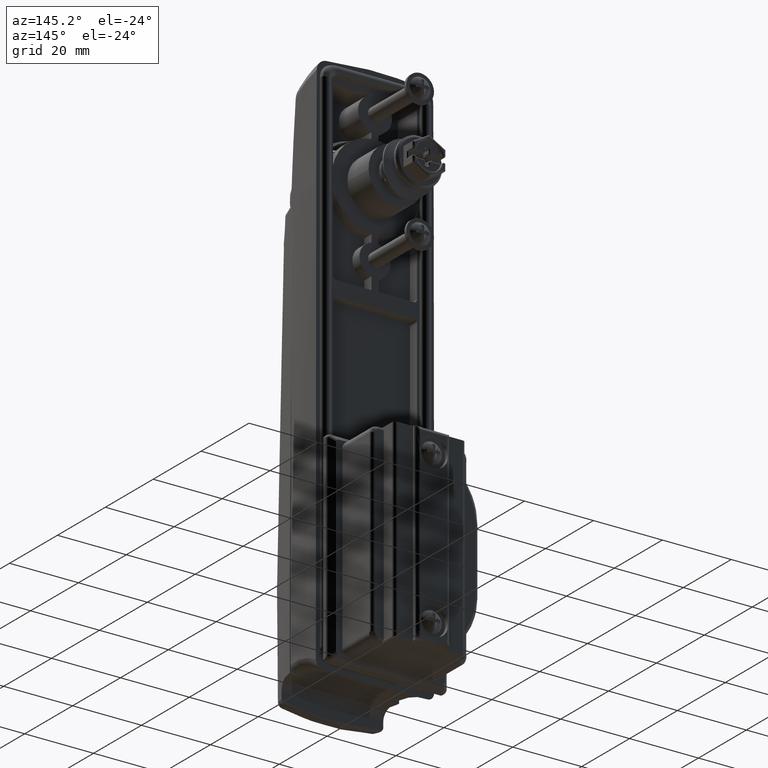
[diagram: clean part render]
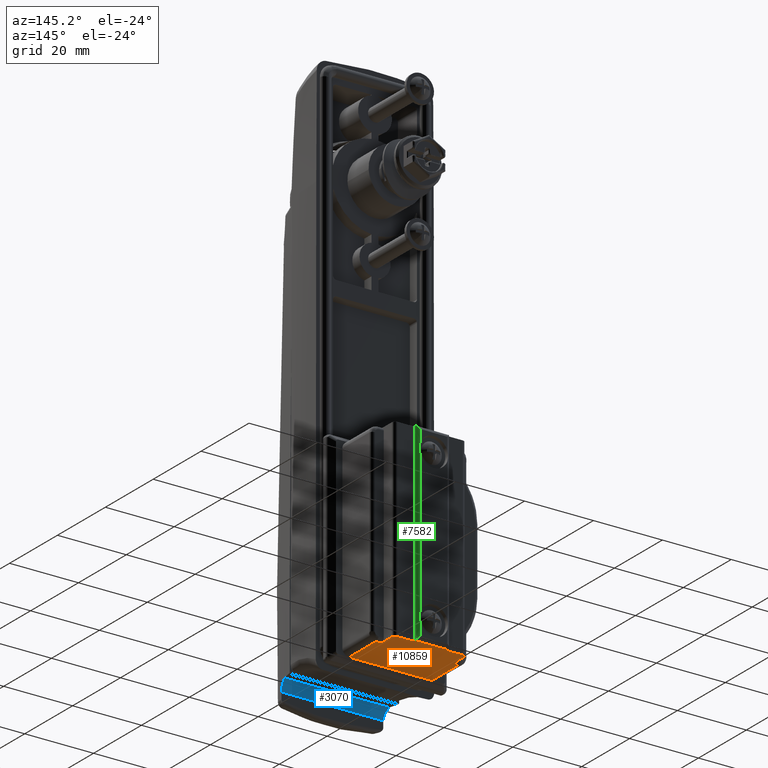
[diagram: same view with three faces highlighted in distinct colors, each labeled with its STEP entity id]
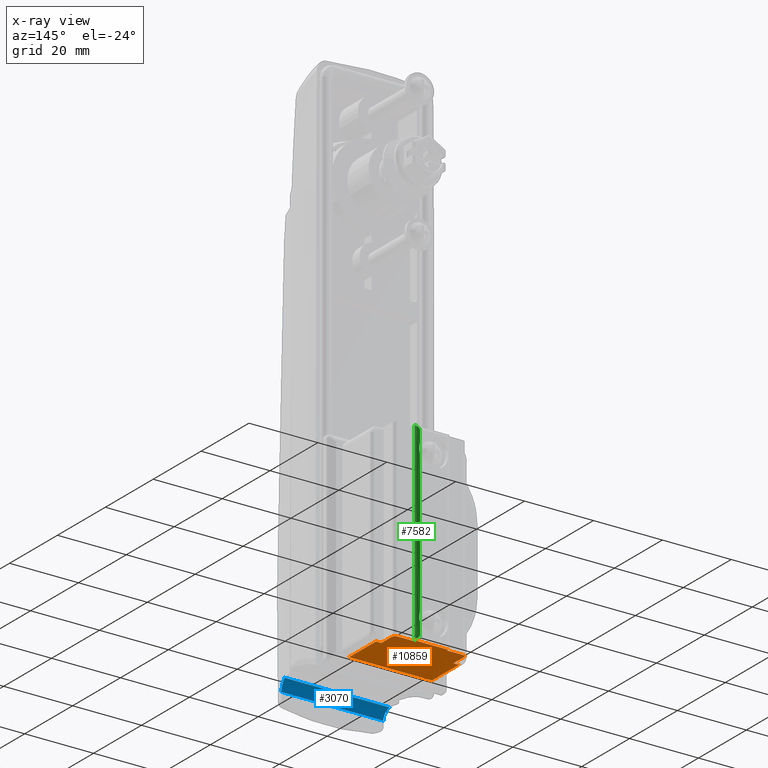
[diagram: x-ray of the same camera — body ghosted, the three highlighted faces saturated]
A machine part, auxiliary view with three faces highlighted in distinct colors.
The next image is the same camera in x-ray (body ghosted, the three faces saturated) — at least one of them is partly hidden behind the body in this view.
Their STEP definitions:

[orange] entity #10859 — the highlighted face is a freeform B-spline surface patch.
#6814=CARTESIAN_POINT('',(16.200000816956251,12.000000664551759,-127.950006077298990));
#6815=VERTEX_POINT('',#6814);
#6838=CARTESIAN_POINT('',(16.200000816956251,10.450000448252160,-127.950006077298990));
#6839=VERTEX_POINT('',#6838);
#6853=CARTESIAN_POINT('',(16.200000816956251,12.000000664551759,-127.950006077298990));
#6854=CARTESIAN_POINT('',(16.200000816956251,10.450000448252160,-127.950006077298990));
#6855=QUASI_UNIFORM_CURVE('',1,(#6853,#6854),.UNSPECIFIED.,.F.,.U.);
#6856=EDGE_CURVE('',#6815,#6839,#6855,.T.);
#7405=CARTESIAN_POINT('',(21.500001105342950,9.450000513242340,-127.950006077298990));
#7406=VERTEX_POINT('',#7405);
#7412=CARTESIAN_POINT('',(20.500001085880200,10.450000531941820,-127.950006077298990));
#7413=VERTEX_POINT('',#7412);
#7414=CARTESIAN_POINT('',(20.500001085880200,10.450000531941820,-127.950006077298990));
#7415=CARTESIAN_POINT('',(20.680099348541571,10.450487665385770,-127.950006077298990));
#7416=CARTESIAN_POINT('',(20.990428853136240,10.363726375734480,-127.950006077299190));
#7417=CARTESIAN_POINT('',(21.311771072047708,10.072403722679320,-127.950006077298700));
#7418=CARTESIAN_POINT('',(21.468455022653458,9.760879629911862,-127.950006077299310));
#7419=CARTESIAN_POINT('',(21.500038616857509,9.548173236830746,-127.950006077298500));
#7420=CARTESIAN_POINT('',(21.500001105342950,9.450000513242340,-127.950006077298990));
#7421=B_SPLINE_CURVE_WITH_KNOTS('',3,(#7414,#7415,#7416,#7417,#7418,#7419,#7420),.UNSPECIFIED.,.F.,.U.,(4,1,1,1,4),(0.000000306187018,0.540037809345196,0.932731003919516,1.276416909964118,1.570953921481525),.UNSPECIFIED.);
#7422=EDGE_CURVE('',#7413,#7406,#7421,.T.);
#7454=CARTESIAN_POINT('',(22.000001092441401,4.950000151288360,-127.950006077298990));
#7455=VERTEX_POINT('',#7454);
#7539=CARTESIAN_POINT('',(22.000001092441401,-4.949999964272389,-127.950006077298990));
#7540=VERTEX_POINT('',#7539);
#7611=CARTESIAN_POINT('',(20.500001174712949,-10.450000357676940,-127.950006077298990));
#7612=VERTEX_POINT('',#7611);
#7618=CARTESIAN_POINT('',(21.500001185674950,-9.450000330476710,-127.950006077298990));
#7619=VERTEX_POINT('',#7618);
#7620=CARTESIAN_POINT('',(21.500001185674950,-9.450000330476710,-127.950006077298990));
#7621=CARTESIAN_POINT('',(21.500231804751131,-9.597306045103535,-127.950006077298890));
#7622=CARTESIAN_POINT('',(21.437411477629560,-9.875266712567573,-127.950006077299310));
#7623=CARTESIAN_POINT('',(21.208933278241449,-10.183428951589351,-127.950006077298600));
#7624=CARTESIAN_POINT('',(20.892520339904920,-10.394728206857250,-127.950006077300100));
#7625=CARTESIAN_POINT('',(20.647313483237610,-10.450243302706960,-127.950006077298500));
#7626=CARTESIAN_POINT('',(20.500001174712949,-10.450000357676940,-127.950006077298990));
#7627=B_SPLINE_CURVE_WITH_KNOTS('',3,(#7620,#7621,#7622,#7623,#7624,#7625,#7626),.UNSPECIFIED.,.F.,.U.,(4,1,1,1,4),(0.000000306186575,0.441840033258406,0.834559410708294,1.129114194409764,1.570953921481519),.UNSPECIFIED.);
#7628=EDGE_CURVE('',#7619,#7612,#7627,.T.);
#7654=CARTESIAN_POINT('',(16.200000905788801,-10.450000310540339,-127.950006077298990));
#7655=VERTEX_POINT('',#7654);
#7676=CARTESIAN_POINT('',(16.200000918964950,-12.000000526839941,-127.950006077298990));
#7677=VERTEX_POINT('',#7676);
#7691=CARTESIAN_POINT('',(16.200000905788801,-10.450000310540339,-127.950006077298990));
#7692=CARTESIAN_POINT('',(16.200000918964950,-12.000000526839941,-127.950006077298990));
#7693=QUASI_UNIFORM_CURVE('',1,(#7691,#7692),.UNSPECIFIED.,.F.,.U.);
#7694=EDGE_CURVE('',#7655,#7677,#7693,.T.);
#10617=CARTESIAN_POINT('',(22.000001092441401,4.950000151288360,-127.950006077298990));
#10618=CARTESIAN_POINT('',(22.000001092441401,-4.949999964272389,-127.950006077298990));
#10619=QUASI_UNIFORM_CURVE('',1,(#10617,#10618),.UNSPECIFIED.,.F.,.U.);
#10620=EDGE_CURVE('',#7455,#7540,#10619,.T.);
#10685=CARTESIAN_POINT('',(5.000000237486710,-12.000000622048100,-127.950006077299800));
#10686=VERTEX_POINT('',#10685);
#10687=CARTESIAN_POINT('',(16.200000918964950,-12.000000526839941,-127.950006077298990));
#10688=CARTESIAN_POINT('',(5.000000237486710,-12.000000622048100,-127.950006077299800));
#10689=QUASI_UNIFORM_CURVE('',1,(#10687,#10688),.UNSPECIFIED.,.F.,.U.);
#10690=EDGE_CURVE('',#7677,#10686,#10689,.T.);
#10738=CARTESIAN_POINT('',(5.000000237486600,12.000000664551759,-127.950006077298990));
#10739=VERTEX_POINT('',#10738);
#10740=CARTESIAN_POINT('',(5.000000237486600,12.000000664551759,-127.950006077298990));
#10741=CARTESIAN_POINT('',(16.200000816956251,12.000000664551759,-127.950006077298990));
#10742=QUASI_UNIFORM_CURVE('',1,(#10740,#10741),.UNSPECIFIED.,.F.,.U.);
#10743=EDGE_CURVE('',#10739,#6815,#10742,.T.);
#10806=CARTESIAN_POINT('',(4.150850227730910,-13.198800639797099,-127.950006077298990));
#10807=CARTESIAN_POINT('',(22.849151558172650,-13.198800639797099,-127.950006077298990));
#10808=CARTESIAN_POINT('',(4.150850227730910,13.198801326030960,-127.950006077298990));
#10809=CARTESIAN_POINT('',(22.849151558172650,13.198801326030960,-127.950006077298990));
#10810=B_SPLINE_SURFACE_WITH_KNOTS('',1,1,((#10806,#10808),(#10807,#10809)),.UNSPECIFIED.,.F.,.F.,.U.,(2,2),(2,2),(0.0,18.698301330441740),(0.0,26.397601965828070),.UNSPECIFIED.);
#10811=CARTESIAN_POINT('',(20.500001174712949,-10.450000357676940,-127.950006077298990));
#10812=CARTESIAN_POINT('',(16.200000905788801,-10.450000310540339,-127.950006077298990));
#10813=QUASI_UNIFORM_CURVE('',1,(#10811,#10812),.UNSPECIFIED.,.F.,.U.);
#10814=EDGE_CURVE('',#7612,#7655,#10813,.T.);
#10815=ORIENTED_EDGE('',*,*,#10814,.T.);
#10816=ORIENTED_EDGE('',*,*,#7694,.T.);
#10817=ORIENTED_EDGE('',*,*,#10690,.T.);
#10818=CARTESIAN_POINT('',(5.000000237486710,-12.000000622048100,-127.950006077299800));
#10819=CARTESIAN_POINT('',(5.000000237486600,12.000000664551759,-127.950006077298990));
#10820=QUASI_UNIFORM_CURVE('',1,(#10818,#10819),.UNSPECIFIED.,.F.,.U.);
#10821=EDGE_CURVE('',#10686,#10739,#10820,.T.);
#10822=ORIENTED_EDGE('',*,*,#10821,.T.);
#10823=ORIENTED_EDGE('',*,*,#10743,.T.);
#10824=ORIENTED_EDGE('',*,*,#6856,.T.);
#10825=CARTESIAN_POINT('',(16.200000816956251,10.450000448252160,-127.950006077298990));
#10826=CARTESIAN_POINT('',(20.500001085880200,10.450000531941820,-127.950006077298990));
#10827=QUASI_UNIFORM_CURVE('',1,(#10825,#10826),.UNSPECIFIED.,.F.,.U.);
#10828=EDGE_CURVE('',#6839,#7413,#10827,.T.);
#10829=ORIENTED_EDGE('',*,*,#10828,.T.);
#10830=ORIENTED_EDGE('',*,*,#7422,.T.);
#10831=CARTESIAN_POINT('',(21.500001021195249,4.950000151288360,-127.950006077298990));
#10832=VERTEX_POINT('',#10831);
#10833=CARTESIAN_POINT('',(21.500001105342950,9.450000513242340,-127.950006077298990));
#10834=CARTESIAN_POINT('',(21.500001021195249,4.950000151288360,-127.950006077298990));
#10835=QUASI_UNIFORM_CURVE('',1,(#10833,#10834),.UNSPECIFIED.,.F.,.U.);
#10836=EDGE_CURVE('',#7406,#10832,#10835,.T.);
#10837=ORIENTED_EDGE('',*,*,#10836,.T.);
#10838=CARTESIAN_POINT('',(21.500001021195249,4.950000151288360,-127.950006077298990));
#10839=CARTESIAN_POINT('',(22.000001092441401,4.950000151288360,-127.950006077298990));
#10840=QUASI_UNIFORM_CURVE('',1,(#10838,#10839),.UNSPECIFIED.,.F.,.U.);
#10841=EDGE_CURVE('',#10832,#7455,#10840,.T.);
#10842=ORIENTED_EDGE('',*,*,#10841,.T.);
#10843=ORIENTED_EDGE('',*,*,#10620,.T.);
#10844=CARTESIAN_POINT('',(21.500001063273899,-4.949999968522760,-127.950006077298990));
#10845=VERTEX_POINT('',#10844);
#10846=CARTESIAN_POINT('',(22.000001092441401,-4.949999964272389,-127.950006077298990));
#10847=CARTESIAN_POINT('',(21.500001063273899,-4.949999968522760,-127.950006077298990));
#10848=QUASI_UNIFORM_CURVE('',1,(#10846,#10847),.UNSPECIFIED.,.F.,.U.);
#10849=EDGE_CURVE('',#7540,#10845,#10848,.T.);
#10850=ORIENTED_EDGE('',*,*,#10849,.T.);
#10851=CARTESIAN_POINT('',(21.500001063273899,-4.949999968522760,-127.950006077298990));
#10852=CARTESIAN_POINT('',(21.500001185674950,-9.450000330476710,-127.950006077298990));
#10853=QUASI_UNIFORM_CURVE('',1,(#10851,#10852),.UNSPECIFIED.,.F.,.U.);
#10854=EDGE_CURVE('',#10845,#7619,#10853,.T.);
#10855=ORIENTED_EDGE('',*,*,#10854,.T.);
#10856=ORIENTED_EDGE('',*,*,#7628,.T.);
#10857=EDGE_LOOP('',(#10815,#10816,#10817,#10822,#10823,#10824,#10829,#10830,#10837,#10842,#10843,#10850,#10855,#10856));
#10858=FACE_OUTER_BOUND('',#10857,.T.);
#10859=ADVANCED_FACE('',(#10858),#10810,.F.);

[blue] entity #3070 — the highlighted face is a freeform B-spline surface patch.
#2984=CARTESIAN_POINT('',(-17.804769563052599,15.988803823540801,-128.948902455924010));
#2985=CARTESIAN_POINT('',(-17.804769563052599,-16.007838113806919,-128.948902455924010));
#2986=CARTESIAN_POINT('',(-17.715221121748517,15.988803823540803,-126.752254188317170));
#2987=CARTESIAN_POINT('',(-17.715221121748517,-16.007838113806915,-126.752254188317170));
#2988=CARTESIAN_POINT('',(-15.672060442429011,15.988803823540801,-125.940603417724700));
#2989=CARTESIAN_POINT('',(-15.672060442429011,-16.007838113806919,-125.940603417724700));
#2997=(BOUNDED_SURFACE()B_SPLINE_SURFACE(1,2,((#2984,#2986,#2988),(#2985,#2987,#2989)),.UNSPECIFIED.,.F.,.F.,.U.)B_SPLINE_SURFACE_WITH_KNOTS((2,2),(3,3),(0.0,31.996641937347722),(0.0,4.011146839539353),.UNSPECIFIED.)GEOMETRIC_REPRESENTATION_ITEM()RATIONAL_B_SPLINE_SURFACE(((1.0,0.838670567945424,1.0),(1.0,0.838670567945424,1.0)))REPRESENTATION_ITEM('')SURFACE());
#2998=CARTESIAN_POINT('',(-17.800000845454750,14.780695585069420,-128.860405088878390));
#2999=VERTEX_POINT('',#2998);
#3000=CARTESIAN_POINT('',(-17.800000845454750,-14.780695585074000,-128.860405088878390));
#3001=VERTEX_POINT('',#3000);
#3002=CARTESIAN_POINT('',(-17.800000845454750,14.780695585069420,-128.860405088878390));
#3003=CARTESIAN_POINT('',(-17.800000845454750,-14.780695585074000,-128.860405088878390));
#3004=QUASI_UNIFORM_CURVE('',1,(#3002,#3003),.UNSPECIFIED.,.F.,.U.);
#3005=EDGE_CURVE('',#2999,#3001,#3004,.T.);
#3006=ORIENTED_EDGE('',*,*,#3005,.F.);
#3007=CARTESIAN_POINT('',(-15.812312938845750,15.227432212896000,-126.000005984679010));
#3008=VERTEX_POINT('',#3007);
#3009=CARTESIAN_POINT('',(-15.812312938845750,15.227432212896000,-126.000005984679010));
#3010=CARTESIAN_POINT('',(-15.951051328760650,15.196988867834341,-126.062484556200200));
#3011=CARTESIAN_POINT('',(-16.084192570256679,15.167651289508511,-126.133640787136300));
#3012=CARTESIAN_POINT('',(-16.339654024365998,15.111155583526010,-126.292743569808910));
#3013=CARTESIAN_POINT('',(-16.461973628843818,15.083997546858109,-126.380691054790400));
#3014=CARTESIAN_POINT('',(-16.637171849843892,15.044965601832430,-126.525473926392810));
#3015=CARTESIAN_POINT('',(-16.694186548299239,15.032240100425859,-126.575885507840500));
#3016=CARTESIAN_POINT('',(-16.805359927102121,15.007383798047361,-126.681146583936100));
#3017=CARTESIAN_POINT('',(-16.859009934347810,14.995366706029170,-126.735523503738510));
#3018=CARTESIAN_POINT('',(-17.013676970924472,14.960665335496650,-126.903192261176300));
#3019=CARTESIAN_POINT('',(-17.108706084831180,14.939265466121981,-127.021254195839700));
#3020=CARTESIAN_POINT('',(-17.282713868942508,14.899955024151881,-127.269862464158510));
#3021=CARTESIAN_POINT('',(-17.361695591977188,14.882043718561350,-127.400406411664310));
#3022=CARTESIAN_POINT('',(-17.467541510500642,14.857948907610639,-127.606048181414490));
#3023=CARTESIAN_POINT('',(-17.500459206984139,14.850438267320159,-127.675778424816900));
#3024=CARTESIAN_POINT('',(-17.561157545697839,14.836555979853591,-127.816520849019800));
#3025=CARTESIAN_POINT('',(-17.589022228305641,14.830165200877840,-127.887694842670500));
#3026=CARTESIAN_POINT('',(-17.665254516583449,14.812627052459680,-128.103595780200290));
#3027=CARTESIAN_POINT('',(-17.706294268552330,14.803106747864311,-128.250690752579490));
#3028=CARTESIAN_POINT('',(-17.768482114034182,14.788490259811191,-128.551309301456800));
#3029=CARTESIAN_POINT('',(-17.789619386945589,14.783394765463150,-128.705512074249410));
#3030=CARTESIAN_POINT('',(-17.800000845454750,14.780695585064841,-128.860405088878200));
#3031=B_SPLINE_CURVE_WITH_KNOTS('',3,(#3009,#3010,#3011,#3012,#3013,#3014,#3015,#3016,#3017,#3018,#3019,#3020,#3021,#3022,#3023,#3024,#3025,#3026,#3027,#3028,#3029,#3030),.UNSPECIFIED.,.F.,.U.,(4,2,2,2,2,2,2,2,2,2,4),(0.0,0.125000000000010,0.250000000000019,0.312500000000025,0.375000000000031,0.500000000000025,0.625000000000018,0.687500000000015,0.750000000000012,0.875000000000006,1.0),.UNSPECIFIED.);
#3032=EDGE_CURVE('',#3008,#2999,#3031,.T.);
#3033=ORIENTED_EDGE('',*,*,#3032,.F.);
#3034=CARTESIAN_POINT('',(-15.812312938845750,-15.227432212896000,-126.000005984679010));
#3035=VERTEX_POINT('',#3034);
#3036=CARTESIAN_POINT('',(-15.812312938845750,15.227432212896000,-126.000005984679010));
#3037=CARTESIAN_POINT('',(-15.812312938845750,-15.227432212896000,-126.000005984679010));
#3038=QUASI_UNIFORM_CURVE('',1,(#3036,#3037),.UNSPECIFIED.,.F.,.U.);
#3039=EDGE_CURVE('',#3008,#3035,#3038,.T.);
#3040=ORIENTED_EDGE('',*,*,#3039,.T.);
#3041=CARTESIAN_POINT('',(-17.800000845454750,-14.780695585074000,-128.860405088878390));
#3042=CARTESIAN_POINT('',(-17.789625664764099,-14.783393133234190,-128.705605740301590));
#3043=CARTESIAN_POINT('',(-17.768788685467261,-14.788416666493880,-128.553416442247710));
#3044=CARTESIAN_POINT('',(-17.707111740679739,-14.802916120858169,-128.254028551870590));
#3045=CARTESIAN_POINT('',(-17.666268582485070,-14.812392823463931,-128.106830760044090));
#3046=CARTESIAN_POINT('',(-17.589834505046539,-14.829978780486160,-127.889818483730710));
#3047=CARTESIAN_POINT('',(-17.561749008350549,-14.836420544278861,-127.817951855840510));
#3048=CARTESIAN_POINT('',(-17.500681842553451,-14.850387508736629,-127.676235872069300));
#3049=CARTESIAN_POINT('',(-17.467917648885191,-14.857863045866630,-127.606858331667000));
#3050=CARTESIAN_POINT('',(-17.363129556194071,-14.881717757848349,-127.403036086601700));
#3051=CARTESIAN_POINT('',(-17.284638830685310,-14.899519104756120,-127.272882776896910));
#3052=CARTESIAN_POINT('',(-17.154179415830491,-14.928993002438810,-127.086092278614600));
#3053=CARTESIAN_POINT('',(-17.108565076711081,-14.939281131308210,-127.025240196766500));
#3054=CARTESIAN_POINT('',(-17.013030192206639,-14.960789928062770,-126.906391566416400));
#3055=CARTESIAN_POINT('',(-16.962926032384100,-14.972051771658080,-126.848200566406110));
#3056=CARTESIAN_POINT('',(-16.807393733208912,-15.006947675198109,-126.679517682774200));
#3057=CARTESIAN_POINT('',(-16.697334275752070,-15.031560892737989,-126.575373104754210));
#3058=CARTESIAN_POINT('',(-16.464995059091500,-15.083325666787960,-126.383010370203000));
#3059=CARTESIAN_POINT('',(-16.342713613344269,-15.110477635125131,-126.294794428751000));
#3060=CARTESIAN_POINT('',(-16.150007391660569,-15.153096877378671,-126.174559900452810));
#3061=CARTESIAN_POINT('',(-16.084063565955180,-15.167653902764890,-126.136423548082110));
#3062=CARTESIAN_POINT('',(-15.949861057915850,-15.197219427826671,-126.064754888366000));
#3063=CARTESIAN_POINT('',(-15.881644260080270,-15.212218850991610,-126.031228214626000));
#3064=CARTESIAN_POINT('',(-15.812312938845899,-15.227432212897099,-126.000005984678790));
#3065=B_SPLINE_CURVE_WITH_KNOTS('',3,(#3041,#3042,#3043,#3044,#3045,#3046,#3047,#3048,#3049,#3050,#3051,#3052,#3053,#3054,#3055,#3056,#3057,#3058,#3059,#3060,#3061,#3062,#3063,#3064),.UNSPECIFIED.,.F.,.U.,(4,2,2,2,2,2,2,2,2,2,2,4),(0.0,0.124999999999983,0.249999999999965,0.312499999999956,0.374999999999947,0.499999999999950,0.562499999999960,0.624999999999970,0.749999999999976,0.874999999999982,0.937499999999991,1.0),.UNSPECIFIED.);
#3066=EDGE_CURVE('',#3001,#3035,#3065,.T.);
#3067=ORIENTED_EDGE('',*,*,#3066,.F.);
#3068=EDGE_LOOP('',(#3006,#3033,#3040,#3067));
#3069=FACE_OUTER_BOUND('',#3068,.T.);
#3070=ADVANCED_FACE('',(#3069),#2997,.F.);

[green] entity #7582 — the highlighted face is a freeform B-spline surface patch.
#4542=CARTESIAN_POINT('',(23.000001188553949,-3.949999964272385,-76.522769088536307));
#4543=VERTEX_POINT('',#4542);
#4557=CARTESIAN_POINT('',(23.000001188553949,-3.949999964272385,-79.377238931065889));
#4558=VERTEX_POINT('',#4557);
#4559=CARTESIAN_POINT('',(23.000001188553949,-3.949999964272385,-76.522769088536307));
#4560=CARTESIAN_POINT('',(23.000001192438159,-3.991681710083566,-76.638127038408243));
#4561=CARTESIAN_POINT('',(22.997446823643269,-4.027994707643309,-76.754402669810574));
#4562=CARTESIAN_POINT('',(22.990610138882939,-4.090267206778536,-76.988797421173089));
#4563=CARTESIAN_POINT('',(22.982023726980412,-4.142183838428219,-77.225035590132720));
#4564=CARTESIAN_POINT('',(22.974739279183801,-4.173612803732756,-77.465030578078327));
#4565=CARTESIAN_POINT('',(22.970937618752341,-4.189398436561808,-77.646481466511673));
#4566=CARTESIAN_POINT('',(22.969940810879471,-4.193360705796557,-77.707207736980763));
#4567=CARTESIAN_POINT('',(22.968599652200279,-4.198644983921398,-77.829155600657430));
#4568=CARTESIAN_POINT('',(22.968256022607349,-4.199964921867514,-77.890538329986086));
#4569=CARTESIAN_POINT('',(22.968275299172280,-4.199890268890190,-78.074060706713894));
#4570=CARTESIAN_POINT('',(22.969709618052310,-4.194505766803318,-78.195480480964562));
#4571=CARTESIAN_POINT('',(22.974784028720340,-4.173418754097667,-78.436535847018249));
#4572=CARTESIAN_POINT('',(22.982055354869569,-4.142012226996480,-78.675806966180119));
#4573=CARTESIAN_POINT('',(22.990623097069790,-4.090168850138597,-78.911609749080512));
#4574=CARTESIAN_POINT('',(22.997448549113450,-4.027960599405467,-79.145704737501347));
#4575=CARTESIAN_POINT('',(23.000001184665390,-3.991675439838941,-79.261898334651889));
#4576=CARTESIAN_POINT('',(23.000001188553949,-3.949999964272385,-79.377238931065889));
#4577=B_SPLINE_CURVE_WITH_KNOTS('',3,(#4559,#4560,#4561,#4562,#4563,#4564,#4565,#4566,#4567,#4568,#4569,#4570,#4571,#4572,#4573,#4574,#4575,#4576),.UNSPECIFIED.,.F.,.U.,(4,2,1,2,2,2,2,1,2,4),(0.0,0.124999999999991,0.249999999999982,0.374999999999973,0.437499999999976,0.499999999999979,0.624999999999984,0.749999999999989,0.874999999999995,1.0),.UNSPECIFIED.);
#4578=EDGE_CURVE('',#4543,#4558,#4577,.T.);
#4774=CARTESIAN_POINT('',(23.000001188553949,-3.949999964272385,-120.522769088536190));
#4775=VERTEX_POINT('',#4774);
#4789=CARTESIAN_POINT('',(23.000001188553949,-3.949999964272385,-123.377238931066000));
#4790=VERTEX_POINT('',#4789);
#4791=CARTESIAN_POINT('',(23.000001188553949,-3.949999964272385,-120.522769088536190));
#4792=CARTESIAN_POINT('',(23.000001192438170,-3.991681710083565,-120.638127038408200));
#4793=CARTESIAN_POINT('',(22.997446823643269,-4.027994707643313,-120.754402669810500));
#4794=CARTESIAN_POINT('',(22.990610138882928,-4.090267206778540,-120.988797421173000));
#4795=CARTESIAN_POINT('',(22.982023726980412,-4.142183838428227,-121.225035590132710));
#4796=CARTESIAN_POINT('',(22.974739279183812,-4.173612803732757,-121.465030578078300));
#4797=CARTESIAN_POINT('',(22.970937618752352,-4.189398436561808,-121.646481466511600));
#4798=CARTESIAN_POINT('',(22.969940810879471,-4.193360705796557,-121.707207736980810));
#4799=CARTESIAN_POINT('',(22.968599652200279,-4.198644983921398,-121.829155600657400));
#4800=CARTESIAN_POINT('',(22.968256022607349,-4.199964921867514,-121.890538329986100));
#4801=CARTESIAN_POINT('',(22.968275299172280,-4.199890268890191,-122.074060706713790));
#4802=CARTESIAN_POINT('',(22.969709618052310,-4.194505766803316,-122.195480480964600));
#4803=CARTESIAN_POINT('',(22.974784028720340,-4.173418754097666,-122.436535847018400));
#4804=CARTESIAN_POINT('',(22.982055354869580,-4.142012226996473,-122.675806966180200));
#4805=CARTESIAN_POINT('',(22.990623097069790,-4.090168850138590,-122.911609749080600));
#4806=CARTESIAN_POINT('',(22.997448549113450,-4.027960599405460,-123.145704737501500));
#4807=CARTESIAN_POINT('',(23.000001184665400,-3.991675439838942,-123.261898334652000));
#4808=CARTESIAN_POINT('',(23.000001188553949,-3.949999964272385,-123.377238931066000));
#4809=B_SPLINE_CURVE_WITH_KNOTS('',3,(#4791,#4792,#4793,#4794,#4795,#4796,#4797,#4798,#4799,#4800,#4801,#4802,#4803,#4804,#4805,#4806,#4807,#4808),.UNSPECIFIED.,.F.,.U.,(4,2,1,2,2,2,2,1,2,4),(0.0,0.125000000000009,0.250000000000018,0.375000000000027,0.437500000000024,0.500000000000022,0.625000000000016,0.750000000000011,0.875000000000005,1.0),.UNSPECIFIED.);
#4810=EDGE_CURVE('',#4775,#4790,#4809,.T.);
#7508=CARTESIAN_POINT('',(21.973824144133530,-4.949657289247942,-70.550003350945175));
#7509=CARTESIAN_POINT('',(21.973824144133530,-4.949657289247942,-129.385006145457910));
#7510=CARTESIAN_POINT('',(23.074985892996121,-4.978492224438647,-70.550003350945175));
#7511=CARTESIAN_POINT('',(23.074985892996121,-4.978492224438647,-129.385006145457850));
#7512=CARTESIAN_POINT('',(22.997525571822216,-3.879679888646400,-70.550003350945175));
#7513=CARTESIAN_POINT('',(22.997525571822216,-3.879679888646400,-129.385006145457880));
#7521=(BOUNDED_SURFACE()B_SPLINE_SURFACE(1,2,((#7508,#7510,#7512),(#7509,#7511,#7513)),.UNSPECIFIED.,.F.,.F.,.U.)B_SPLINE_SURFACE_WITH_KNOTS((2,2),(3,3),(0.0,58.835002794512690),(0.0,0.994518632334191),.UNSPECIFIED.)GEOMETRIC_REPRESENTATION_ITEM()RATIONAL_B_SPLINE_SURFACE(((1.0,0.670944223154768,0.996392648609106),(1.0,0.670944223154768,0.996392648609106)))REPRESENTATION_ITEM('')SURFACE());
#7522=CARTESIAN_POINT('',(22.000001092441401,-4.949999964272389,-71.950003417441607));
#7523=VERTEX_POINT('',#7522);
#7524=CARTESIAN_POINT('',(23.000001092441401,-3.949999964272385,-72.950003417441607));
#7525=VERTEX_POINT('',#7524);
#7526=CARTESIAN_POINT('',(22.000001092441401,-4.949999964272385,-71.950003417441607));
#7527=CARTESIAN_POINT('',(23.000001092441391,-4.949999964272385,-71.950003417441607));
#7528=CARTESIAN_POINT('',(23.000001092441401,-3.949999964272385,-72.950003417441607));
#7536=(BOUNDED_CURVE()B_SPLINE_CURVE(2,(#7526,#7527,#7528),.UNSPECIFIED.,.F.,.U.)CURVE()GEOMETRIC_REPRESENTATION_ITEM()QUASI_UNIFORM_CURVE()RATIONAL_B_SPLINE_CURVE((1.0,0.707106781186547,1.0))REPRESENTATION_ITEM(''));
#7537=EDGE_CURVE('',#7523,#7525,#7536,.T.);
#7538=ORIENTED_EDGE('',*,*,#7537,.F.);
#7539=CARTESIAN_POINT('',(22.000001092441401,-4.949999964272389,-127.950006077298990));
#7540=VERTEX_POINT('',#7539);
#7541=CARTESIAN_POINT('',(22.000001092441401,-4.949999964272389,-127.950006077298990));
#7542=CARTESIAN_POINT('',(22.000001092441401,-4.949999964272389,-71.950003417441607));
#7543=QUASI_UNIFORM_CURVE('',1,(#7541,#7542),.UNSPECIFIED.,.F.,.U.);
#7544=EDGE_CURVE('',#7540,#7523,#7543,.T.);
#7545=ORIENTED_EDGE('',*,*,#7544,.F.);
#7546=CARTESIAN_POINT('',(23.000001092441401,-3.949999964272385,-126.950006077298990));
#7547=VERTEX_POINT('',#7546);
#7548=CARTESIAN_POINT('',(23.000001092441401,-3.949999964272385,-126.950006077298990));
#7549=CARTESIAN_POINT('',(22.999919194849831,-4.062545949604579,-127.062552062631200));
#7550=CARTESIAN_POINT('',(22.960103249104169,-4.301865505990905,-127.301871619017500));
#7551=CARTESIAN_POINT('',(22.822285441047018,-4.538965183347425,-127.538971296374200));
#7552=CARTESIAN_POINT('',(22.703757249197359,-4.661066768135044,-127.661072881161700));
#7553=CARTESIAN_POINT('',(22.679373165831208,-4.683228293745740,-127.683234406772300));
#7554=CARTESIAN_POINT('',(22.661524947674820,-4.700178166136309,-127.700184279163000));
#7555=CARTESIAN_POINT('',(22.573132943853899,-4.776043461147519,-127.776049574176890));
#7556=CARTESIAN_POINT('',(22.421063981111189,-4.870595226740787,-127.870601339764600));
#7557=CARTESIAN_POINT('',(22.188940322716942,-4.938269783910597,-127.938275896939300));
#7558=CARTESIAN_POINT('',(22.059682793305640,-4.950026963116639,-127.950033076140600));
#7559=CARTESIAN_POINT('',(22.000001092441401,-4.949999964272389,-127.950006077298990));
#7560=B_SPLINE_CURVE_WITH_KNOTS('',3,(#7548,#7549,#7550,#7551,#7552,#7553,#7554,#7555,#7556,#7557,#7558,#7559),.UNSPECIFIED.,.F.,.U.,(4,1,1,1,1,1,1,1,1,4),(-0.000080285527425,0.477550782882544,1.014849306345372,1.074469482250371,1.104322541957209,1.134175601664047,1.164009571035522,1.522240273500537,1.731159327168993,1.910200029819208),.UNSPECIFIED.);
#7561=EDGE_CURVE('',#7547,#7540,#7560,.T.);
#7562=ORIENTED_EDGE('',*,*,#7561,.F.);
#7563=CARTESIAN_POINT('',(23.000001188553949,-3.949999964272385,-123.377238931066000));
#7564=CARTESIAN_POINT('',(23.000001092441401,-3.949999964272385,-126.950006077298990));
#7565=QUASI_UNIFORM_CURVE('',1,(#7563,#7564),.UNSPECIFIED.,.F.,.U.);
#7566=EDGE_CURVE('',#4790,#7547,#7565,.T.);
#7567=ORIENTED_EDGE('',*,*,#7566,.F.);
#7568=ORIENTED_EDGE('',*,*,#4810,.F.);
#7569=CARTESIAN_POINT('',(23.000001188553949,-3.949999964272385,-79.377238931065889));
#7570=CARTESIAN_POINT('',(23.000001188553949,-3.949999964272385,-120.522769088536190));
#7571=QUASI_UNIFORM_CURVE('',1,(#7569,#7570),.UNSPECIFIED.,.F.,.U.);
#7572=EDGE_CURVE('',#4558,#4775,#7571,.T.);
#7573=ORIENTED_EDGE('',*,*,#7572,.F.);
#7574=ORIENTED_EDGE('',*,*,#4578,.F.);
#7575=CARTESIAN_POINT('',(23.000001092441401,-3.949999964272385,-72.950003417441607));
#7576=CARTESIAN_POINT('',(23.000001188553949,-3.949999964272385,-76.522769088536307));
#7577=QUASI_UNIFORM_CURVE('',1,(#7575,#7576),.UNSPECIFIED.,.F.,.U.);
#7578=EDGE_CURVE('',#7525,#4543,#7577,.T.);
#7579=ORIENTED_EDGE('',*,*,#7578,.F.);
#7580=EDGE_LOOP('',(#7538,#7545,#7562,#7567,#7568,#7573,#7574,#7579));
#7581=FACE_OUTER_BOUND('',#7580,.T.);
#7582=ADVANCED_FACE('',(#7581),#7521,.T.);